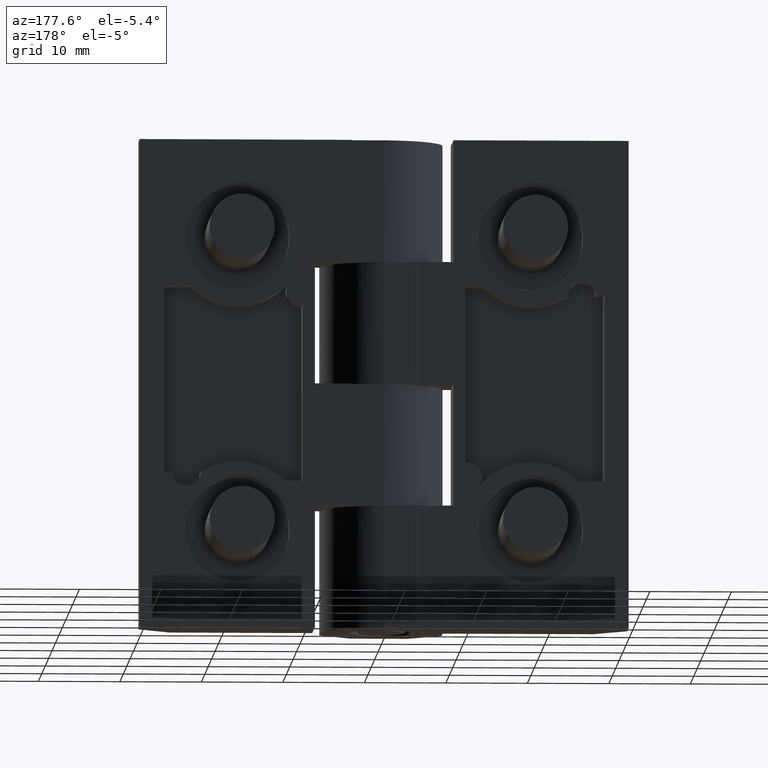
[diagram: clean part render]
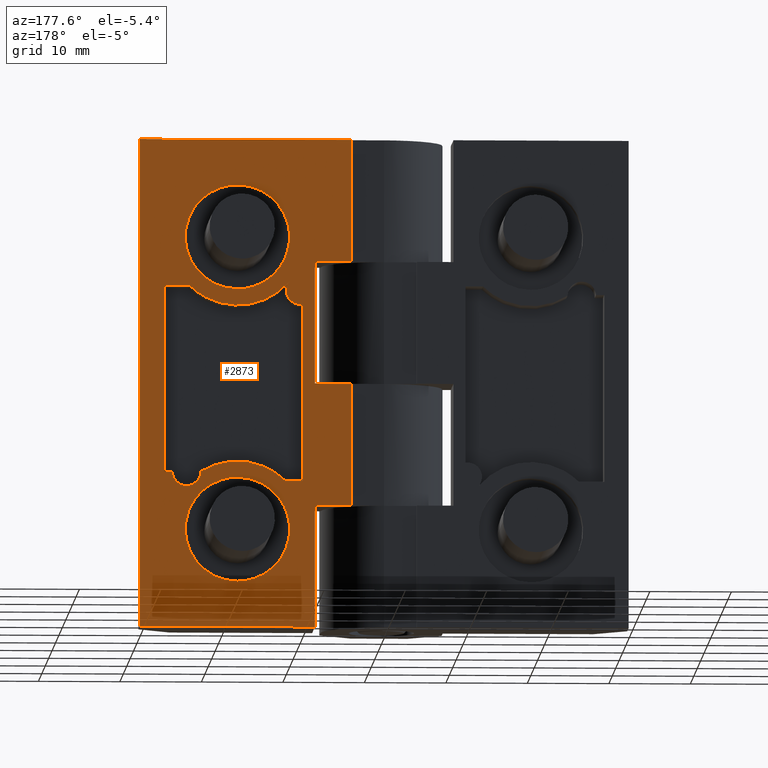
[diagram: same view with one face highlighted and labeled with its STEP entity id]
A machine part, auxiliary view. The second image highlights one B-rep face of the part: STEP entity #2873.
In plain terms, the highlighted face is a freeform B-spline surface patch.
Its self-contained STEP definition (entity closure, byte-faithful):
#889=CARTESIAN_POINT('',(11.619729064112979,8.0,12.502138212595201));
#890=VERTEX_POINT('',#889);
#896=CARTESIAN_POINT('',(18.0,8.0,18.399999999873501));
#897=VERTEX_POINT('',#896);
#898=CARTESIAN_POINT('',(18.0,8.0,18.399999999873501));
#899=CARTESIAN_POINT('',(12.083900853505593,8.0,18.399999999873504));
#900=CARTESIAN_POINT('',(11.619729064112981,8.0,12.502138212595202));
#908=(BOUNDED_CURVE()B_SPLINE_CURVE(2,(#898,#899,#900),.UNSPECIFIED.,.F.,.U.)B_SPLINE_CURVE_WITH_KNOTS((3,3),(0.0,0.236331300629355),.UNSPECIFIED.)CURVE()GEOMETRIC_REPRESENTATION_ITEM()RATIONAL_B_SPLINE_CURVE((1.0,0.723120658609194,0.969723356164695))REPRESENTATION_ITEM(''));
#909=EDGE_CURVE('',#897,#890,#908,.T.);
#911=CARTESIAN_POINT('',(24.380270935887019,8.0,11.497861787151789));
#912=VERTEX_POINT('',#911);
#913=CARTESIAN_POINT('',(24.380270935887019,8.0,11.497861787151791));
#914=CARTESIAN_POINT('',(24.399999999999999,8.0,11.748543314960624));
#915=CARTESIAN_POINT('',(24.399999999999999,8.0,11.999999999873500));
#916=CARTESIAN_POINT('',(24.400000000000002,8.0,18.399999999873490));
#917=CARTESIAN_POINT('',(18.0,8.0,18.399999999873501));
#925=(BOUNDED_CURVE()B_SPLINE_CURVE(2,(#913,#914,#915,#916,#917),.UNSPECIFIED.,.F.,.U.)B_SPLINE_CURVE_WITH_KNOTS((3,2,3),(0.736331300629355,0.750000000000000,1.0),.UNSPECIFIED.)CURVE()GEOMETRIC_REPRESENTATION_ITEM()RATIONAL_B_SPLINE_CURVE((0.969723356164695,0.983986122577353,1.0,0.707106781186548,1.0))REPRESENTATION_ITEM(''));
#926=EDGE_CURVE('',#912,#897,#925,.T.);
#1002=CARTESIAN_POINT('',(18.0,8.0,5.599999999873499));
#1003=VERTEX_POINT('',#1002);
#1004=CARTESIAN_POINT('',(18.0,8.0,5.599999999873499));
#1005=CARTESIAN_POINT('',(23.916099146494425,8.0,5.599999999873501));
#1006=CARTESIAN_POINT('',(24.380270935887022,8.0,11.497861787151797));
#1014=(BOUNDED_CURVE()B_SPLINE_CURVE(2,(#1004,#1005,#1006),.UNSPECIFIED.,.F.,.U.)B_SPLINE_CURVE_WITH_KNOTS((3,3),(0.500000000000000,0.736331300629355),.UNSPECIFIED.)CURVE()GEOMETRIC_REPRESENTATION_ITEM()RATIONAL_B_SPLINE_CURVE((1.0,0.723120658609194,0.969723356164696))REPRESENTATION_ITEM(''));
#1015=EDGE_CURVE('',#1003,#912,#1014,.T.);
#1017=CARTESIAN_POINT('',(11.619729064112974,8.0,12.502138212595204));
#1018=CARTESIAN_POINT('',(11.600000000000001,8.0,12.251456684786374));
#1019=CARTESIAN_POINT('',(11.600000000000000,8.0,11.999999999873500));
#1020=CARTESIAN_POINT('',(11.600000000000001,8.0,5.599999999873499));
#1021=CARTESIAN_POINT('',(18.0,8.0,5.599999999873499));
#1029=(BOUNDED_CURVE()B_SPLINE_CURVE(2,(#1017,#1018,#1019,#1020,#1021),.UNSPECIFIED.,.F.,.U.)B_SPLINE_CURVE_WITH_KNOTS((3,2,3),(0.236331300629355,0.250000000000000,0.500000000000000),.UNSPECIFIED.)CURVE()GEOMETRIC_REPRESENTATION_ITEM()RATIONAL_B_SPLINE_CURVE((0.969723356164695,0.983986122577353,1.0,0.707106781186548,1.0))REPRESENTATION_ITEM(''));
#1030=EDGE_CURVE('',#890,#1003,#1029,.T.);
#1071=CARTESIAN_POINT('',(11.619729064112979,8.0,48.502138212595312));
#1072=VERTEX_POINT('',#1071);
#1078=CARTESIAN_POINT('',(18.0,8.0,54.399999999873607));
#1079=VERTEX_POINT('',#1078);
#1080=CARTESIAN_POINT('',(18.0,8.0,54.399999999873607));
#1081=CARTESIAN_POINT('',(12.083900853505591,8.0,54.399999999873629));
#1082=CARTESIAN_POINT('',(11.619729064112981,8.0,48.502138212595312));
#1090=(BOUNDED_CURVE()B_SPLINE_CURVE(2,(#1080,#1081,#1082),.UNSPECIFIED.,.F.,.U.)B_SPLINE_CURVE_WITH_KNOTS((3,3),(0.0,0.236331300629355),.UNSPECIFIED.)CURVE()GEOMETRIC_REPRESENTATION_ITEM()RATIONAL_B_SPLINE_CURVE((1.0,0.723120658609194,0.969723356164695))REPRESENTATION_ITEM(''));
#1091=EDGE_CURVE('',#1079,#1072,#1090,.T.);
#1093=CARTESIAN_POINT('',(24.380270935887019,8.0,47.497861787151891));
#1094=VERTEX_POINT('',#1093);
#1095=CARTESIAN_POINT('',(24.380270935887019,8.000000000000002,47.497861787151884));
#1096=CARTESIAN_POINT('',(24.399999999999999,8.0,47.748543314960720));
#1097=CARTESIAN_POINT('',(24.399999999999999,8.0,47.999999999873602));
#1098=CARTESIAN_POINT('',(24.400000000000002,8.0,54.399999999873621));
#1099=CARTESIAN_POINT('',(18.0,8.0,54.399999999873607));
#1107=(BOUNDED_CURVE()B_SPLINE_CURVE(2,(#1095,#1096,#1097,#1098,#1099),.UNSPECIFIED.,.F.,.U.)B_SPLINE_CURVE_WITH_KNOTS((3,2,3),(0.736331300629355,0.750000000000000,1.0),.UNSPECIFIED.)CURVE()GEOMETRIC_REPRESENTATION_ITEM()RATIONAL_B_SPLINE_CURVE((0.969723356164694,0.983986122577353,1.0,0.707106781186548,1.0))REPRESENTATION_ITEM(''));
#1108=EDGE_CURVE('',#1094,#1079,#1107,.T.);
#1184=CARTESIAN_POINT('',(18.0,8.0,41.599999999873603));
#1185=VERTEX_POINT('',#1184);
#1186=CARTESIAN_POINT('',(18.0,8.0,41.599999999873603));
#1187=CARTESIAN_POINT('',(23.916099146494425,8.0,41.599999999873603));
#1188=CARTESIAN_POINT('',(24.380270935887022,8.0,47.497861787151891));
#1196=(BOUNDED_CURVE()B_SPLINE_CURVE(2,(#1186,#1187,#1188),.UNSPECIFIED.,.F.,.U.)B_SPLINE_CURVE_WITH_KNOTS((3,3),(0.500000000000000,0.736331300629355),.UNSPECIFIED.)CURVE()GEOMETRIC_REPRESENTATION_ITEM()RATIONAL_B_SPLINE_CURVE((1.0,0.723120658609194,0.969723356164696))REPRESENTATION_ITEM(''));
#1197=EDGE_CURVE('',#1185,#1094,#1196,.T.);
#1199=CARTESIAN_POINT('',(11.619729064112979,8.000000000000002,48.502138212595305));
#1200=CARTESIAN_POINT('',(11.600000000000000,8.0,48.251456684786476));
#1201=CARTESIAN_POINT('',(11.600000000000000,8.0,47.999999999873602));
#1202=CARTESIAN_POINT('',(11.600000000000001,8.0,41.599999999873596));
#1203=CARTESIAN_POINT('',(18.0,8.0,41.599999999873603));
#1211=(BOUNDED_CURVE()B_SPLINE_CURVE(2,(#1199,#1200,#1201,#1202,#1203),.UNSPECIFIED.,.F.,.U.)B_SPLINE_CURVE_WITH_KNOTS((3,2,3),(0.236331300629355,0.250000000000000,0.500000000000000),.UNSPECIFIED.)CURVE()GEOMETRIC_REPRESENTATION_ITEM()RATIONAL_B_SPLINE_CURVE((0.969723356164695,0.983986122577354,1.0,0.707106781186548,1.0))REPRESENTATION_ITEM(''));
#1212=EDGE_CURVE('',#1072,#1185,#1211,.T.);
#1725=CARTESIAN_POINT('',(9.999999999999879,8.0,39.713561349208149));
#1726=VERTEX_POINT('',#1725);
#1727=CARTESIAN_POINT('',(11.586206896551680,8.0,42.575679026306247));
#1728=VERTEX_POINT('',#1727);
#1729=CARTESIAN_POINT('',(9.999999999999885,8.0,39.713561349208192));
#1730=CARTESIAN_POINT('',(11.195255925345334,8.0,39.541041016645934));
#1731=CARTESIAN_POINT('',(11.780650435245891,8.0,40.597314305146163));
#1732=CARTESIAN_POINT('',(12.366044945146434,8.0,41.653587593646371));
#1733=CARTESIAN_POINT('',(11.586206896551730,8.0,42.575679026306283));
#1741=(BOUNDED_CURVE()B_SPLINE_CURVE(2,(#1729,#1730,#1731,#1732,#1733),.UNSPECIFIED.,.F.,.U.)B_SPLINE_CURVE_WITH_KNOTS((3,2,3),(0.0,0.500000000000000,1.0),.UNSPECIFIED.)CURVE()GEOMETRIC_REPRESENTATION_ITEM()RATIONAL_B_SPLINE_CURVE((1.0,0.823048823920841,1.0,0.823048823920841,1.0))REPRESENTATION_ITEM(''));
#1742=EDGE_CURVE('',#1726,#1728,#1741,.T.);
#1763=CARTESIAN_POINT('',(10.0,8.0,18.0));
#1764=VERTEX_POINT('',#1763);
#1765=CARTESIAN_POINT('',(9.999999999999879,8.0,39.713561349208149));
#1766=CARTESIAN_POINT('',(10.0,8.0,18.0));
#1767=QUASI_UNIFORM_CURVE('',1,(#1765,#1766),.UNSPECIFIED.,.F.,.U.);
#1768=EDGE_CURVE('',#1726,#1764,#1767,.T.);
#1785=CARTESIAN_POINT('',(12.121224617272720,8.0,18.0));
#1786=VERTEX_POINT('',#1785);
#1787=CARTESIAN_POINT('',(10.0,8.0,18.0));
#1788=CARTESIAN_POINT('',(12.121224617272720,8.0,18.0));
#1789=QUASI_UNIFORM_CURVE('',1,(#1787,#1788),.UNSPECIFIED.,.F.,.U.);
#1790=EDGE_CURVE('',#1764,#1786,#1789,.T.);
#1816=CARTESIAN_POINT('',(22.500032020331549,8.0,19.092933935731601));
#1817=VERTEX_POINT('',#1816);
#1818=CARTESIAN_POINT('',(22.500032020331531,8.0,19.092933935731569));
#1819=CARTESIAN_POINT('',(16.877442339288827,8.0,22.660122609882748));
#1820=CARTESIAN_POINT('',(12.121224617272750,8.0,17.999999999999979));
#1828=(BOUNDED_CURVE()B_SPLINE_CURVE(2,(#1818,#1819,#1820),.UNSPECIFIED.,.F.,.U.)CURVE()GEOMETRIC_REPRESENTATION_ITEM()QUASI_UNIFORM_CURVE()RATIONAL_B_SPLINE_CURVE((1.0,0.783650455742544,1.0))REPRESENTATION_ITEM(''));
#1829=EDGE_CURVE('',#1817,#1786,#1828,.T.);
#1859=CARTESIAN_POINT('',(25.996935475914000,8.0,19.0));
#1860=VERTEX_POINT('',#1859);
#1861=CARTESIAN_POINT('',(22.500032020331510,8.0,19.092933935731601));
#1862=CARTESIAN_POINT('',(22.510278533623975,8.000000000000002,17.399137313616780));
#1863=CARTESIAN_POINT('',(24.203508300500019,8.0,17.354137928208392));
#1864=CARTESIAN_POINT('',(25.896738067376056,8.000000000000002,17.309138542800000));
#1865=CARTESIAN_POINT('',(25.996935475913961,8.0,19.0));
#1873=(BOUNDED_CURVE()B_SPLINE_CURVE(2,(#1861,#1862,#1863,#1864,#1865),.UNSPECIFIED.,.F.,.U.)B_SPLINE_CURVE_WITH_KNOTS((3,2,3),(0.0,0.500000000000000,1.0),.UNSPECIFIED.)CURVE()GEOMETRIC_REPRESENTATION_ITEM()RATIONAL_B_SPLINE_CURVE((1.0,0.718544845127396,1.0,0.718544845127396,1.0))REPRESENTATION_ITEM(''));
#1874=EDGE_CURVE('',#1817,#1860,#1873,.T.);
#1891=CARTESIAN_POINT('',(27.0,8.0,19.0));
#1892=VERTEX_POINT('',#1891);
#1893=CARTESIAN_POINT('',(25.996935475914000,8.0,19.0));
#1894=CARTESIAN_POINT('',(27.0,8.0,19.0));
#1895=QUASI_UNIFORM_CURVE('',1,(#1893,#1894),.UNSPECIFIED.,.F.,.U.);
#1896=EDGE_CURVE('',#1860,#1892,#1895,.T.);
#1913=CARTESIAN_POINT('',(27.0,8.0,42.0));
#1914=VERTEX_POINT('',#1913);
#1915=CARTESIAN_POINT('',(27.0,8.0,19.0));
#1916=CARTESIAN_POINT('',(27.0,8.0,42.0));
#1917=QUASI_UNIFORM_CURVE('',1,(#1915,#1916),.UNSPECIFIED.,.F.,.U.);
#1918=EDGE_CURVE('',#1892,#1914,#1917,.T.);
#1935=CARTESIAN_POINT('',(23.878775382631950,8.0,42.0));
#1936=VERTEX_POINT('',#1935);
#1937=CARTESIAN_POINT('',(27.0,8.0,42.0));
#1938=CARTESIAN_POINT('',(23.878775382631950,8.0,42.0));
#1939=QUASI_UNIFORM_CURVE('',1,(#1937,#1938),.UNSPECIFIED.,.F.,.U.);
#1940=EDGE_CURVE('',#1914,#1936,#1939,.T.);
#1966=CARTESIAN_POINT('',(11.586206896551710,8.0,42.575679026306283));
#1967=CARTESIAN_POINT('',(13.950207683247861,8.0,39.780451381102424));
#1968=CARTESIAN_POINT('',(17.607046344044090,8.0,39.609196258790888));
#1969=CARTESIAN_POINT('',(21.263885004840315,8.0,39.437941136479360));
#1970=CARTESIAN_POINT('',(23.878775382632000,8.0,41.999999999999943));
#1978=(BOUNDED_CURVE()B_SPLINE_CURVE(2,(#1966,#1967,#1968,#1969,#1970),.UNSPECIFIED.,.F.,.U.)B_SPLINE_CURVE_WITH_KNOTS((3,2,3),(0.0,0.500000000000000,1.0),.UNSPECIFIED.)CURVE()GEOMETRIC_REPRESENTATION_ITEM()RATIONAL_B_SPLINE_CURVE((1.0,0.916723622877946,1.0,0.916723622877946,1.0))REPRESENTATION_ITEM(''));
#1979=EDGE_CURVE('',#1728,#1936,#1978,.T.);
#2018=CARTESIAN_POINT('',(8.500000000000000,8.0,44.999999999953687));
#2019=VERTEX_POINT('',#2018);
#2025=CARTESIAN_POINT('',(8.500000000000000,8.0,30.0));
#2026=VERTEX_POINT('',#2025);
#2027=CARTESIAN_POINT('',(8.500000000000000,8.0,30.0));
#2028=CARTESIAN_POINT('',(8.500000000000000,8.0,44.999999999953687));
#2029=QUASI_UNIFORM_CURVE('',1,(#2027,#2028),.UNSPECIFIED.,.F.,.U.);
#2030=EDGE_CURVE('',#2026,#2019,#2029,.T.);
#2053=CARTESIAN_POINT('',(3.999999999999915,8.0,30.0));
#2054=VERTEX_POINT('',#2053);
#2055=CARTESIAN_POINT('',(3.999999999999915,8.0,30.0));
#2056=CARTESIAN_POINT('',(8.500000000000000,8.0,30.0));
#2057=QUASI_UNIFORM_CURVE('',1,(#2055,#2056),.UNSPECIFIED.,.F.,.U.);
#2058=EDGE_CURVE('',#2054,#2026,#2057,.T.);
#2202=CARTESIAN_POINT('',(3.999999999999915,8.0,44.999999999943952));
#2203=VERTEX_POINT('',#2202);
#2209=CARTESIAN_POINT('',(8.500000000000000,8.0,44.999999999953687));
#2210=CARTESIAN_POINT('',(3.999999999999915,8.0,44.999999999943952));
#2211=QUASI_UNIFORM_CURVE('',1,(#2209,#2210),.UNSPECIFIED.,.F.,.U.);
#2212=EDGE_CURVE('',#2019,#2203,#2211,.T.);
#2293=CARTESIAN_POINT('',(3.999999999999915,8.0,15.000000000022551));
#2294=VERTEX_POINT('',#2293);
#2300=CARTESIAN_POINT('',(8.500000000000000,8.0,15.000000000018600));
#2301=VERTEX_POINT('',#2300);
#2302=CARTESIAN_POINT('',(8.500000000000000,8.0,15.000000000018600));
#2303=CARTESIAN_POINT('',(3.999999999999915,8.0,15.000000000022551));
#2304=QUASI_UNIFORM_CURVE('',1,(#2302,#2303),.UNSPECIFIED.,.F.,.U.);
#2305=EDGE_CURVE('',#2301,#2294,#2304,.T.);
#2334=CARTESIAN_POINT('',(8.500000000000000,8.0,0.0));
#2335=VERTEX_POINT('',#2334);
#2336=CARTESIAN_POINT('',(8.500000000000000,8.0,0.0));
#2337=CARTESIAN_POINT('',(8.500000000000000,8.0,15.000000000018600));
#2338=QUASI_UNIFORM_CURVE('',1,(#2336,#2337),.UNSPECIFIED.,.F.,.U.);
#2339=EDGE_CURVE('',#2335,#2301,#2338,.T.);
#2361=CARTESIAN_POINT('',(3.999999999999915,8.0,60.0));
#2362=VERTEX_POINT('',#2361);
#2363=CARTESIAN_POINT('',(30.0,8.0,60.0));
#2364=VERTEX_POINT('',#2363);
#2365=CARTESIAN_POINT('',(3.999999999999915,8.0,60.0));
#2366=CARTESIAN_POINT('',(30.0,8.0,60.0));
#2367=QUASI_UNIFORM_CURVE('',1,(#2365,#2366),.UNSPECIFIED.,.F.,.U.);
#2368=EDGE_CURVE('',#2362,#2364,#2367,.T.);
#2495=CARTESIAN_POINT('',(30.0,8.0,0.0));
#2496=VERTEX_POINT('',#2495);
#2502=CARTESIAN_POINT('',(30.0,8.0,60.0));
#2503=CARTESIAN_POINT('',(30.0,8.0,0.0));
#2504=QUASI_UNIFORM_CURVE('',1,(#2502,#2503),.UNSPECIFIED.,.F.,.U.);
#2505=EDGE_CURVE('',#2364,#2496,#2504,.T.);
#2523=CARTESIAN_POINT('',(8.500000000000000,8.0,0.0));
#2524=CARTESIAN_POINT('',(30.0,8.0,0.0));
#2525=QUASI_UNIFORM_CURVE('',1,(#2523,#2524),.UNSPECIFIED.,.F.,.U.);
#2526=EDGE_CURVE('',#2335,#2496,#2525,.T.);
#2538=CARTESIAN_POINT('',(3.999999999999915,8.0,30.0));
#2539=CARTESIAN_POINT('',(3.999999999999915,8.0,15.000000000022551));
#2540=QUASI_UNIFORM_CURVE('',1,(#2538,#2539),.UNSPECIFIED.,.F.,.U.);
#2541=EDGE_CURVE('',#2054,#2294,#2540,.T.);
#2558=CARTESIAN_POINT('',(3.999999999999915,8.0,60.0));
#2559=CARTESIAN_POINT('',(3.999999999999915,8.0,44.999999999943952));
#2560=QUASI_UNIFORM_CURVE('',1,(#2558,#2559),.UNSPECIFIED.,.F.,.U.);
#2561=EDGE_CURVE('',#2362,#2203,#2560,.T.);
#2833=CARTESIAN_POINT('',(2.701300050392955,8.0,-2.996999883708359));
#2834=CARTESIAN_POINT('',(2.701300050392955,8.0,62.997001493033771));
#2835=CARTESIAN_POINT('',(31.298700646981299,8.0,-2.996999883708359));
#2836=CARTESIAN_POINT('',(31.298700646981299,8.0,62.997001493033771));
#2837=B_SPLINE_SURFACE_WITH_KNOTS('',1,1,((#2833,#2835),(#2834,#2836)),.UNSPECIFIED.,.F.,.F.,.U.,(2,2),(2,2),(0.0,65.994001376742133),(0.0,28.597400596588351),.UNSPECIFIED.);
#2838=ORIENTED_EDGE('',*,*,#2526,.F.);
#2839=ORIENTED_EDGE('',*,*,#2339,.T.);
#2840=ORIENTED_EDGE('',*,*,#2305,.T.);
#2841=ORIENTED_EDGE('',*,*,#2541,.F.);
#2842=ORIENTED_EDGE('',*,*,#2058,.T.);
#2843=ORIENTED_EDGE('',*,*,#2030,.T.);
#2844=ORIENTED_EDGE('',*,*,#2212,.T.);
#2845=ORIENTED_EDGE('',*,*,#2561,.F.);
#2846=ORIENTED_EDGE('',*,*,#2368,.T.);
#2847=ORIENTED_EDGE('',*,*,#2505,.T.);
#2848=EDGE_LOOP('',(#2838,#2839,#2840,#2841,#2842,#2843,#2844,#2845,#2846,#2847));
#2849=FACE_OUTER_BOUND('',#2848,.T.);
#2850=ORIENTED_EDGE('',*,*,#1979,.F.);
#2851=ORIENTED_EDGE('',*,*,#1742,.F.);
#2852=ORIENTED_EDGE('',*,*,#1768,.T.);
#2853=ORIENTED_EDGE('',*,*,#1790,.T.);
#2854=ORIENTED_EDGE('',*,*,#1829,.F.);
#2855=ORIENTED_EDGE('',*,*,#1874,.T.);
#2856=ORIENTED_EDGE('',*,*,#1896,.T.);
#2857=ORIENTED_EDGE('',*,*,#1918,.T.);
#2858=ORIENTED_EDGE('',*,*,#1940,.T.);
#2859=EDGE_LOOP('',(#2850,#2851,#2852,#2853,#2854,#2855,#2856,#2857,#2858));
#2860=FACE_BOUND('',#2859,.T.);
#2861=ORIENTED_EDGE('',*,*,#1197,.T.);
#2862=ORIENTED_EDGE('',*,*,#1108,.T.);
#2863=ORIENTED_EDGE('',*,*,#1091,.T.);
#2864=ORIENTED_EDGE('',*,*,#1212,.T.);
#2865=EDGE_LOOP('',(#2861,#2862,#2863,#2864));
#2866=FACE_BOUND('',#2865,.T.);
#2867=ORIENTED_EDGE('',*,*,#1015,.T.);
#2868=ORIENTED_EDGE('',*,*,#926,.T.);
#2869=ORIENTED_EDGE('',*,*,#909,.T.);
#2870=ORIENTED_EDGE('',*,*,#1030,.T.);
#2871=EDGE_LOOP('',(#2867,#2868,#2869,#2870));
#2872=FACE_BOUND('',#2871,.T.);
#2873=ADVANCED_FACE('',(#2849,#2860,#2866,#2872),#2837,.T.);